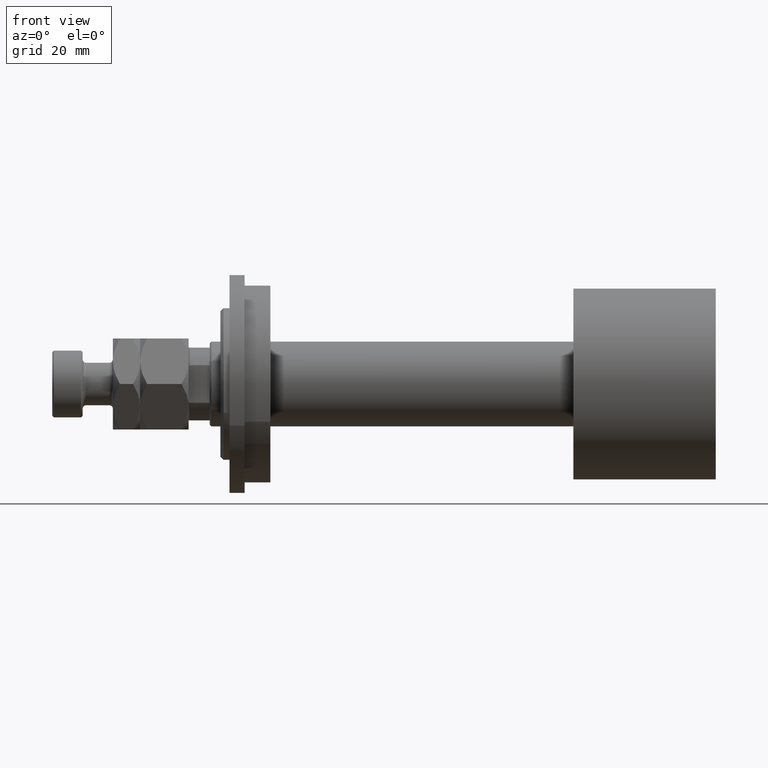
[diagram: clean part render]
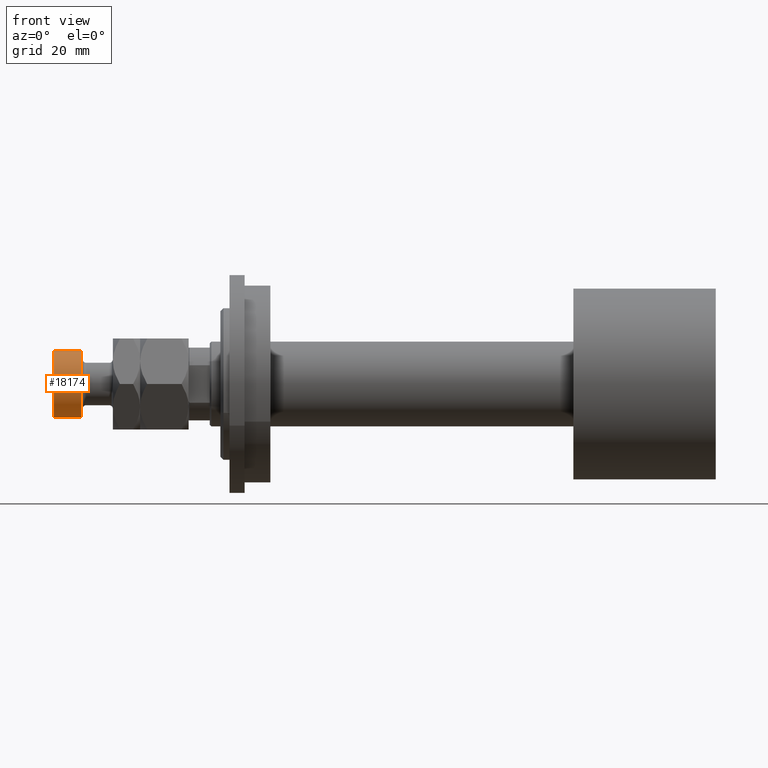
[diagram: same view with one face highlighted and labeled with its STEP entity id]
A machine part, front view. The second image highlights one B-rep face of the part: STEP entity #18174.
In plain terms, the highlighted cylindrical surface (edge-blend (fillet) strip) has radius 11 mm, axis along (1, -0, -0).
Its self-contained STEP definition (entity closure, byte-faithful):
#257 = VERTEX_POINT ( 'NONE', #36338 ) ;
#1751 = FACE_OUTER_BOUND ( 'NONE', #21631, .T. ) ;
#4311 = LINE ( 'NONE', #15096, #9950 ) ;
#5666 = CARTESIAN_POINT ( 'NONE',  ( 0.000000000000000000, 0.000000000000000000, 45.00000000000000711 ) ) ;
#6248 = AXIS2_PLACEMENT_3D ( 'NONE', #5666, #30709, #13215 ) ;
#7271 = EDGE_CURVE ( 'NONE', #17201, #257, #4311, .T. ) ;
#8223 = CARTESIAN_POINT ( 'NONE',  ( -11.00000000000000000, 0.000000000000000000, 45.00000000000000711 ) ) ;
#8630 = CARTESIAN_POINT ( 'NONE',  ( -11.00000000000000000, 0.000000000000000000, 35.50000000000001421 ) ) ;
#9950 = VECTOR ( 'NONE', #25205, 1000.000000000000000 ) ;
#11682 = ORIENTED_EDGE ( 'NONE', *, *, #31727, .T. ) ;
#12318 = CIRCLE ( 'NONE', #26985, 11.00000000000000000 ) ;
#12991 = CYLINDRICAL_SURFACE ( 'NONE', #6248, 11.00000000000000000 ) ;
#13215 = DIRECTION ( 'NONE',  ( -1.000000000000000000, 0.000000000000000000, 0.000000000000000000 ) ) ;
#13807 = VECTOR ( 'NONE', #39723, 1000.000000000000000 ) ;
#14125 = ORIENTED_EDGE ( 'NONE', *, *, #7271, .F. ) ;
#14830 = VERTEX_POINT ( 'NONE', #8630 ) ;
#14884 = LINE ( 'NONE', #8223, #13807 ) ;
#15096 = CARTESIAN_POINT ( 'NONE',  ( 11.00000000000000000, 1.347111479062088405E-15, 45.00000000000000711 ) ) ;
#16243 = CARTESIAN_POINT ( 'NONE',  ( -11.00000000000000000, 0.000000000000000000, 44.50000000000001421 ) ) ;
#16462 = ORIENTED_EDGE ( 'NONE', *, *, #30427, .T. ) ;
#17201 = VERTEX_POINT ( 'NONE', #40430 ) ;
#18174 = ADVANCED_FACE ( 'NONE', ( #1751 ), #12991, .T. ) ;
#20552 = DIRECTION ( 'NONE',  ( 1.000000000000000000, 0.000000000000000000, 0.000000000000000000 ) ) ;
#21631 = EDGE_LOOP ( 'NONE', ( #14125, #11682, #35169, #16462 ) ) ;
#23990 = CARTESIAN_POINT ( 'NONE',  ( 0.000000000000000000, 0.000000000000000000, 44.50000000000001421 ) ) ;
#25205 = DIRECTION ( 'NONE',  ( -0.000000000000000000, -0.000000000000000000, -1.000000000000000000 ) ) ;
#26524 = EDGE_CURVE ( 'NONE', #30387, #14830, #14884, .T. ) ;
#26985 = AXIS2_PLACEMENT_3D ( 'NONE', #37862, #31182, #27729 ) ;
#27729 = DIRECTION ( 'NONE',  ( 1.000000000000000000, 0.000000000000000000, 0.000000000000000000 ) ) ;
#30387 = VERTEX_POINT ( 'NONE', #16243 ) ;
#30427 = EDGE_CURVE ( 'NONE', #14830, #257, #12318, .T. ) ;
#30709 = DIRECTION ( 'NONE',  ( -0.000000000000000000, -0.000000000000000000, -1.000000000000000000 ) ) ;
#30713 = AXIS2_PLACEMENT_3D ( 'NONE', #23990, #31131, #20552 ) ;
#31131 = DIRECTION ( 'NONE',  ( 0.000000000000000000, 0.000000000000000000, -1.000000000000000000 ) ) ;
#31182 = DIRECTION ( 'NONE',  ( -0.000000000000000000, -0.000000000000000000, 1.000000000000000000 ) ) ;
#31727 = EDGE_CURVE ( 'NONE', #17201, #30387, #37320, .T. ) ;
#35169 = ORIENTED_EDGE ( 'NONE', *, *, #26524, .T. ) ;
#36338 = CARTESIAN_POINT ( 'NONE',  ( 11.00000000000000000, 1.347111479062088405E-15, 35.50000000000001421 ) ) ;
#37320 = CIRCLE ( 'NONE', #30713, 11.00000000000000000 ) ;
#37862 = CARTESIAN_POINT ( 'NONE',  ( 0.000000000000000000, 0.000000000000000000, 35.50000000000001421 ) ) ;
#39723 = DIRECTION ( 'NONE',  ( -0.000000000000000000, -0.000000000000000000, -1.000000000000000000 ) ) ;
#40430 = CARTESIAN_POINT ( 'NONE',  ( 11.00000000000000000, 1.347111479062088405E-15, 44.50000000000001421 ) ) ;